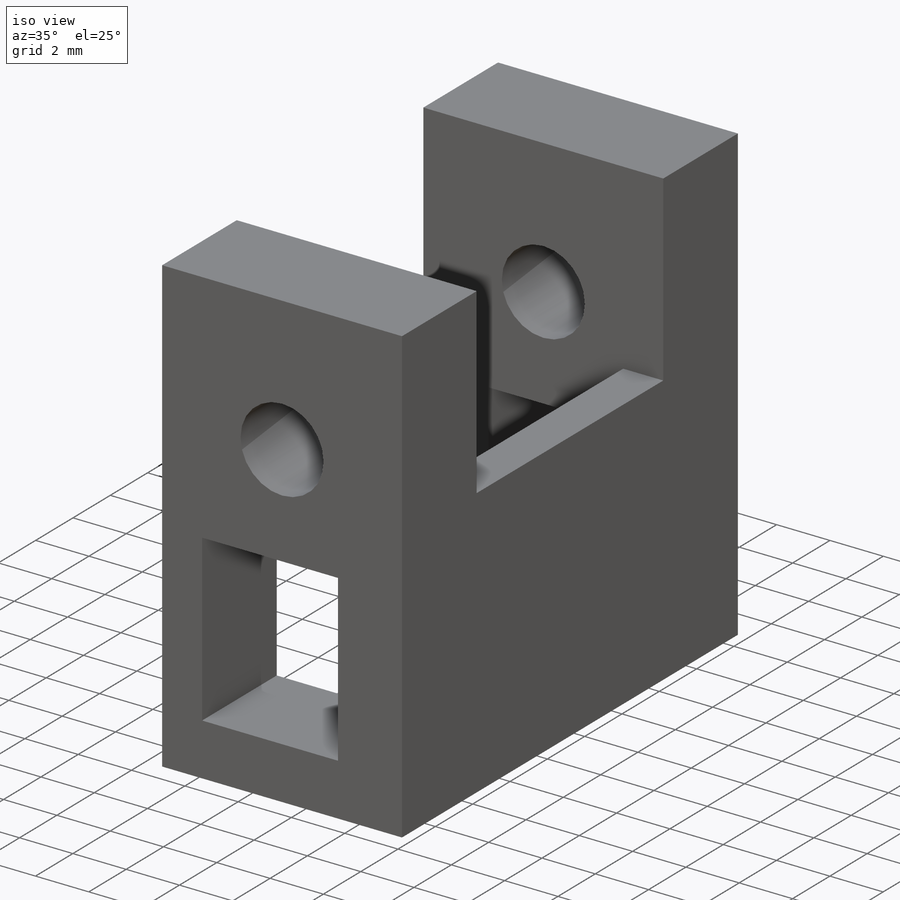
[diagram: iso view]
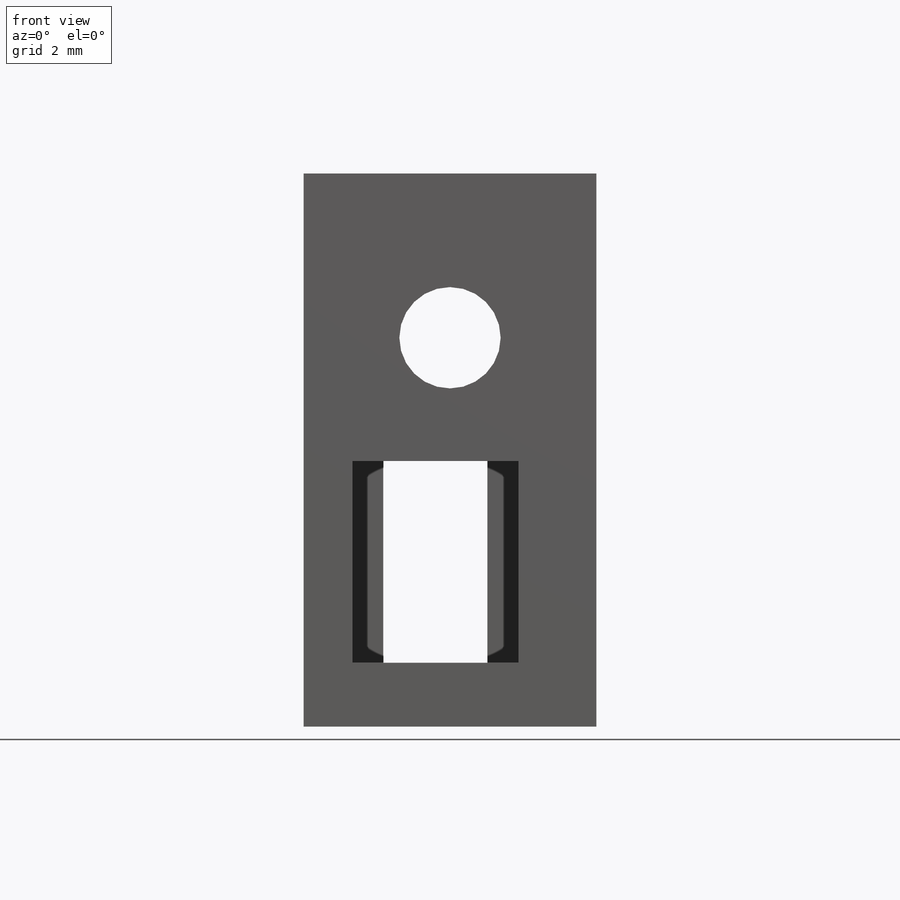
[diagram: front view]
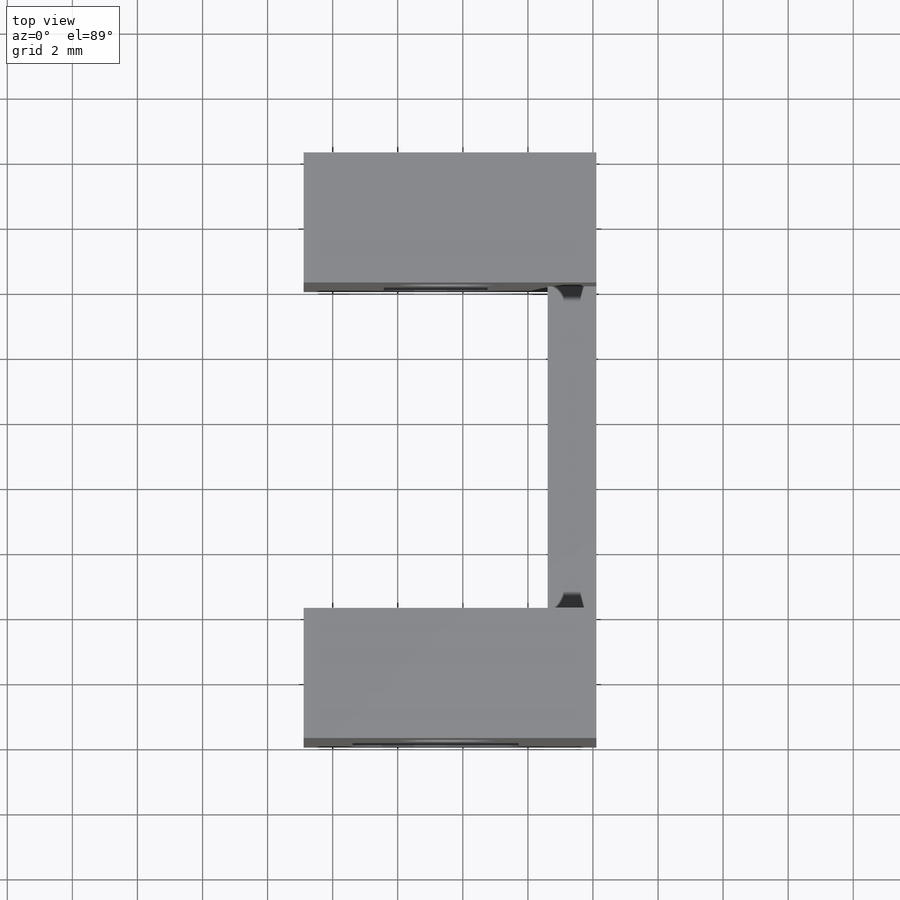
[diagram: top view]
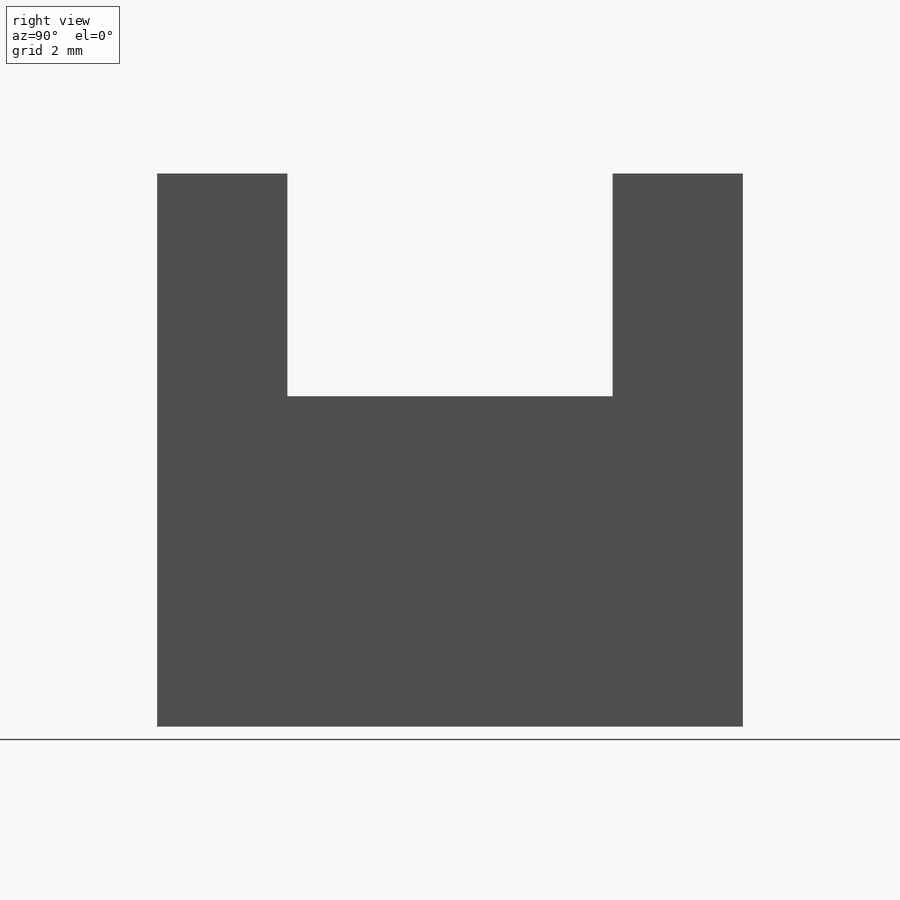
[diagram: right view]
SOLIDWORKS PART (.sldprt)
format: sldprt  version: not decoded by parser v0  size: 225,792 bytes
history: native  units: mm
features: sketch x5, extrude x4, plane x3, material x1, cut_extrude x1 (+10 scaffold rows collapsed)
feature tree (24):
  scaffold x10  (default folders/planes/origin — collapsed)
  material  "Material <nicht angegeben>"
  plane  "Ebene vorne"
  plane  "Ebene oben"
  plane  "Ebene rechts"
  sketch  "Skizze3"  dims[D1=1.6mm]
  extrude  "Aufsatz-Linear austragen2"  Depth=4mm
  sketch  "Skizze4"
  extrude  "Aufsatz-Linear austragen3"  Depth=10mm
  sketch  "Skizze6"
  extrude  "Aufsatz-Linear austragen5"  Depth=4mm
  sketch  "Skizze7"
  cut_extrude  "Schnitt-Linear austragen1"  Depth=4mm
  sketch  "Skizze8"
  extrude  "Aufsatz-Linear austragen6"  Depth=4mm
decode coverage: 6 of 10 modeling features carry decoded parameters
note: suppression state not decoded; provenance and decode notes live in map.json
